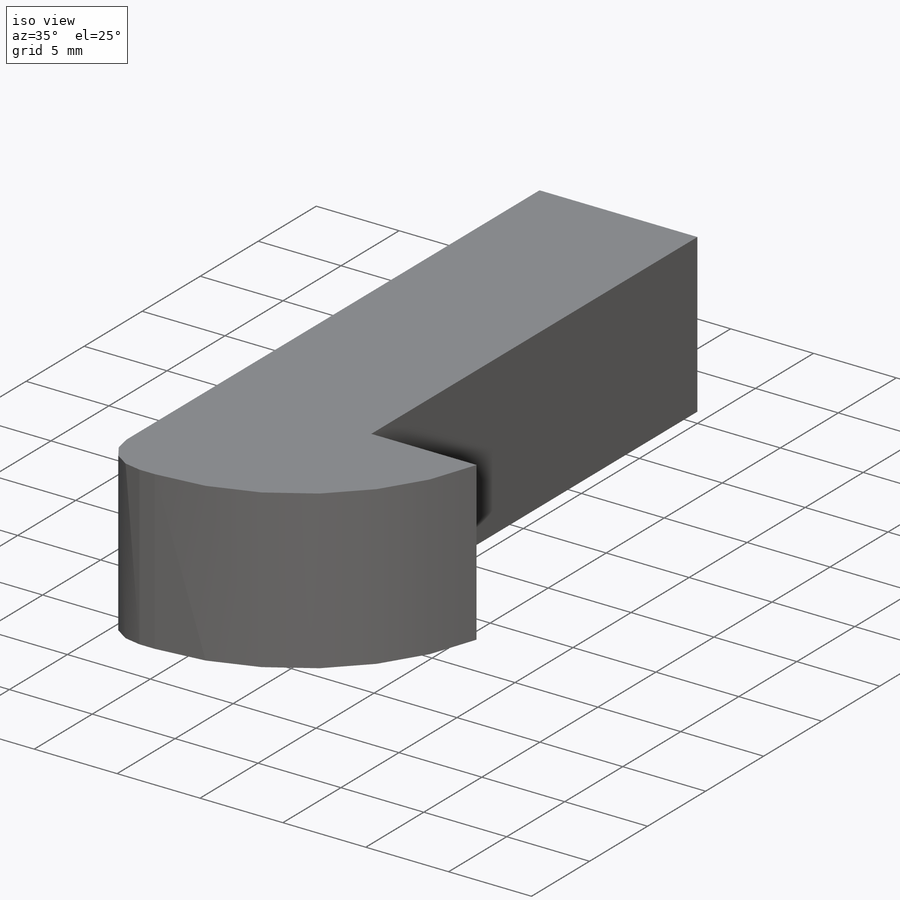
[diagram: iso view]
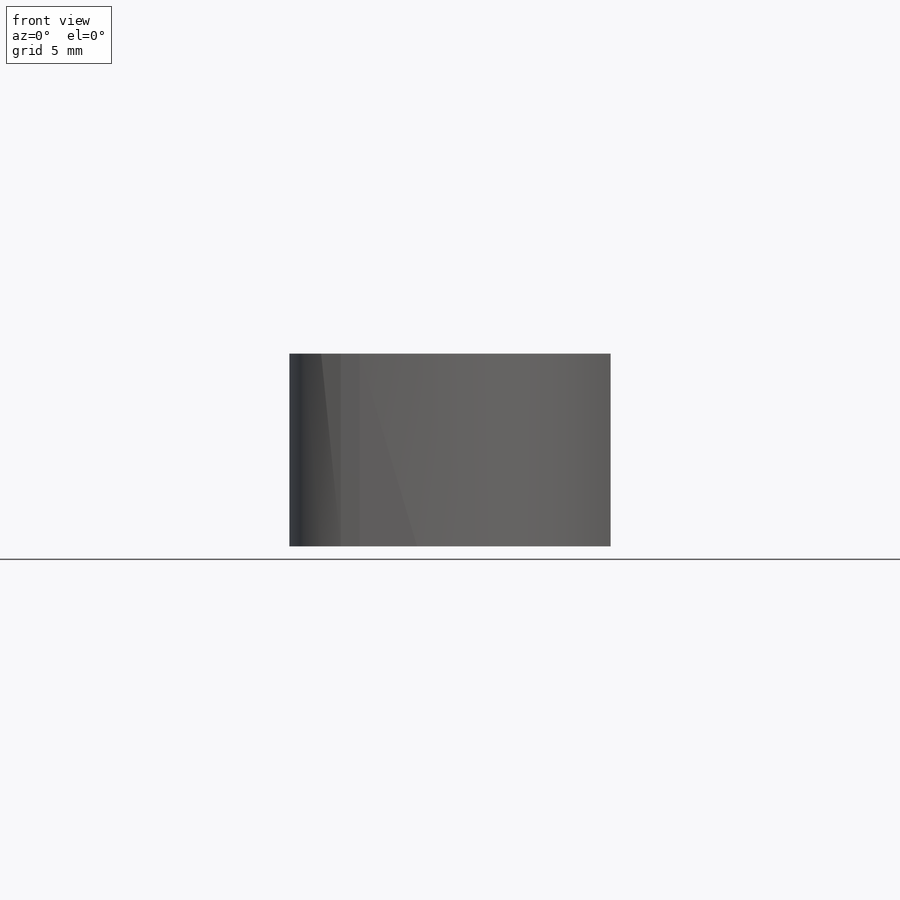
[diagram: front view]
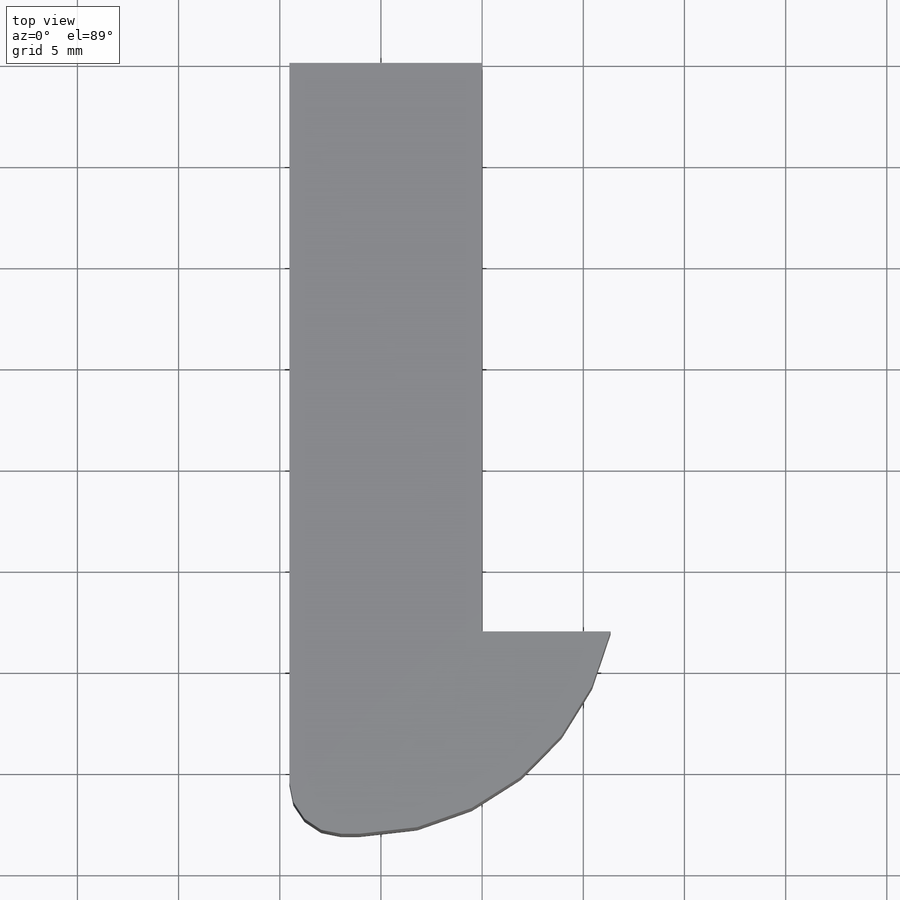
[diagram: top view]
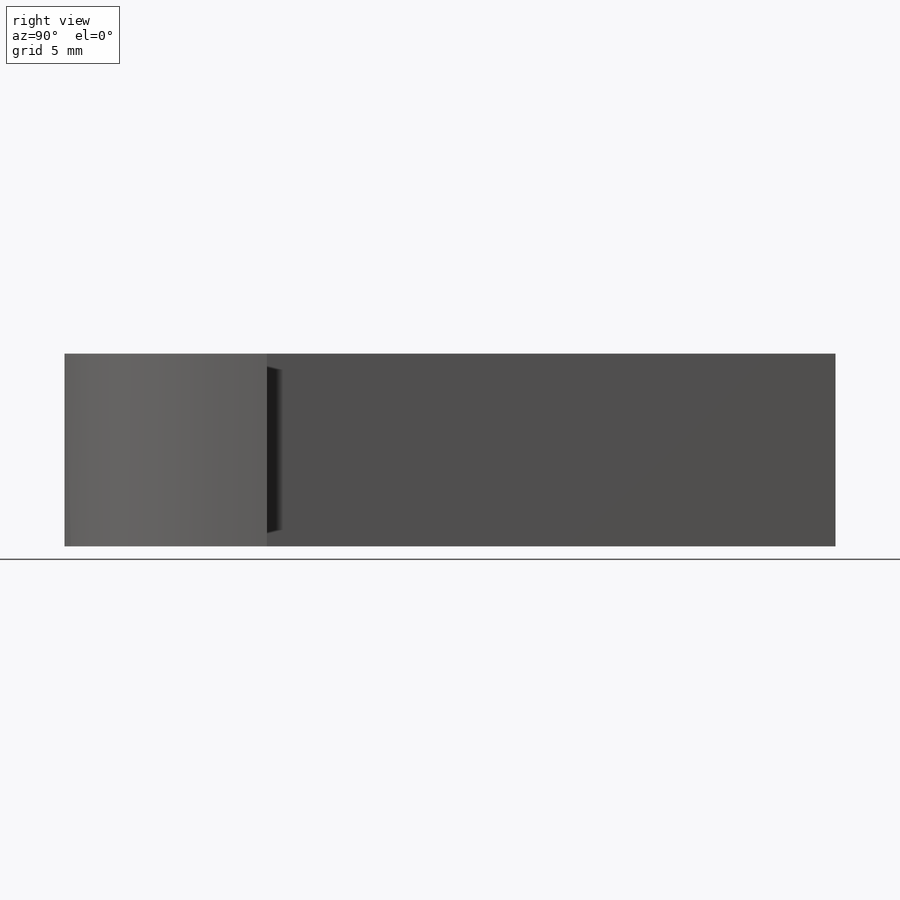
[diagram: right view]
SOLIDWORKS PART (.sldprt)
format: sldprt  version: not decoded by parser v0  size: 186,368 bytes
history: native  units: mm
features: sketch x4, plane x3, extrude x2, fillet x2, material x1, hole x1 + 1 further entry (+7 scaffold rows collapsed)
feature tree (21):
  scaffold x7  (default folders/planes/origin — collapsed)
  material  "Material <not specified>"
  plane  "정면"
  plane  "윗면"
  plane  "우측면"
  "원점"
  sketch  "Sketch1"  dims[D1=9.525mm D2=9.525mm]
  extrude  "Extrude1"  Depth=38.1mm
  hole  "1/4-20 Tapped Hole1"  Diameter=5.1054mm Depth=21.336mm
  sketch  "3DSketch4"  dims[c1.D1=4.0mm c1.D3=4.0mm c1.D2=5.0mm c2.D1=4.7625mm c2.D2=4.7625mm]
  sketch  "Sketch7"  dims[hole-wizard template sketch: 29 standard entries collapsed; hole parameters kept: c8.Tap Drill Depth=21.336mm c8.Thread Major Dia.=6.35mm c8.Thread Depth=14.986mm c8.D5=~14.816244mm c8.Drill Angle=118.0deg]
  sketch  "Sketch9"  dims[D1=10.0mm]
  extrude  "Extrude3"  Depth=6.35mm
  fillet  "Fillet2"  Radius=12.7mm
  fillet  "Fillet3"  Radius=2.54mm
decode coverage: 9 of 9 modeling features carry decoded parameters; 1 rows unclassified (native names shown)
note: ~ marks probable driven/reference dimensions
note: suppression state not decoded; provenance and decode notes live in map.json
